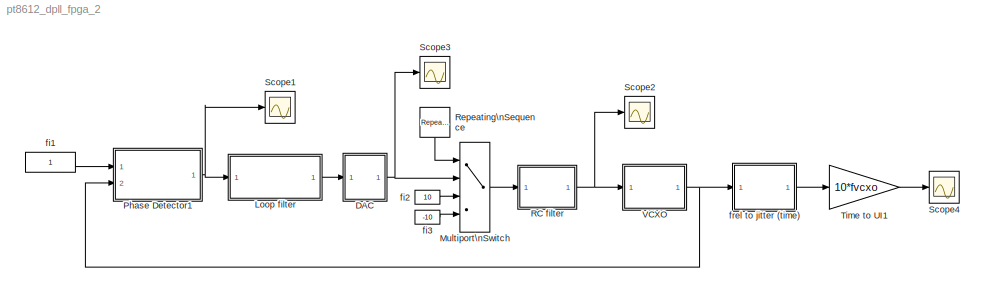
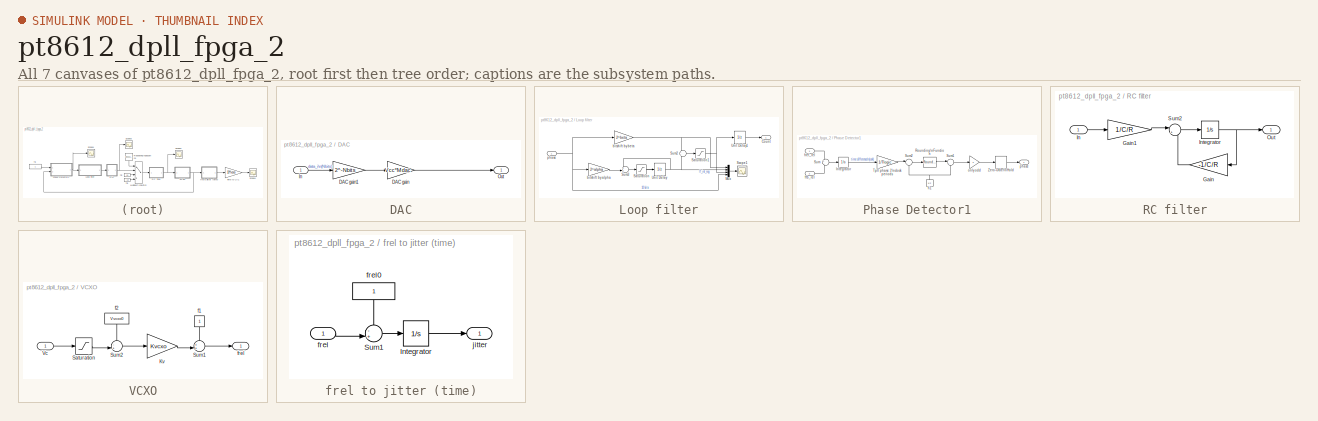
[diagram: thumbnail index - all 7 canvases of the model, root first then tree order]
MODEL pt8612_dpll_fpga_2
KIND model
CONFIG AbsTol = 1e-12
CONFIG FixedStep = auto
CONFIG MaxStep = auto
CONFIG MinStep = auto
CONFIG RelTol = 1e-9
CONFIG Solver = ode45
CONFIG SolverMode = Auto
CONFIG StartTime = 0.0
CONFIG StopTime = 5
BLOCK [SubSystem] DAC
  Ports = [1, 1]
  TreatAsAtomicUnit = off
BLOCK [Gain] DAC/DAC gain
  Gain = Vcc*Mdac
BLOCK [Gain] DAC/DAC gain1
  Gain = 2^-Nbits
BLOCK [Inport] DAC/In
BLOCK [Outport] DAC/Out
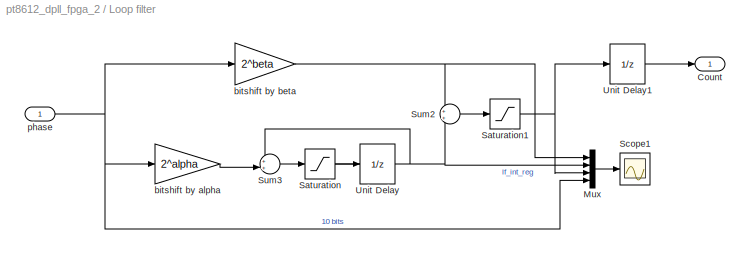
BLOCK [SubSystem] Loop filter
  Ports = [1, 1]
  TreatAsAtomicUnit = off
BLOCK [Outport] Loop filter/Count
BLOCK [Mux] Loop filter/Mux
  DisplayOption = bar
  Ports = [4, 1]
BLOCK [Saturate] Loop filter/Saturation
  LowerLimit = 0
  UpperLimit = 2^16
BLOCK [Saturate] Loop filter/Saturation1
  LowerLimit = 0
  UpperLimit = 2^16
BLOCK [Scope] Loop filter/Scope1
  DataFormat = StructureWithTime
  Decimation = 100
  NumInputPorts = 1
  Ports = [1]
  SampleTime = T
  SaveName = ScopeData5
  TimeRange = 10
  YMax = 70000
  YMin = -20000
  ZoomMode = xonly
BLOCK [Sum] Loop filter/Sum2
  IconShape = round
  InputSameDT = off
  OutDataTypeMode = Inherit via internal rule
  Ports = [2, 1]
BLOCK [Sum] Loop filter/Sum3
  IconShape = round
  InputSameDT = off
  Inputs = ++|
  OutDataTypeMode = Inherit via internal rule
  Ports = [2, 1]
BLOCK [UnitDelay] Loop filter/Unit Delay
  SampleTime = T
BLOCK [UnitDelay] Loop filter/Unit Delay1
  SampleTime = T
BLOCK [Gain] Loop filter/bitshift by alpha
  Gain = 2^alpha
BLOCK [Gain] Loop filter/bitshift by beta
  Gain = 2^beta
BLOCK [Inport] Loop filter/phase
BLOCK [MultiPortSwitch] Multiport\nSwitch
  InputSameDT = off
  Inputs = 3
  Ports = [4, 1]
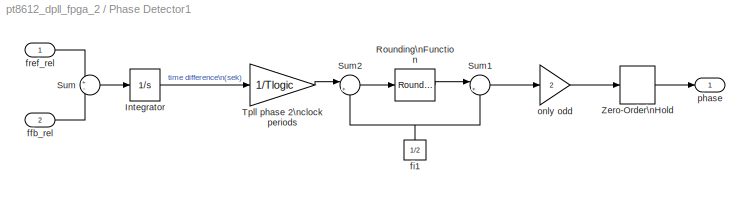
BLOCK [SubSystem] Phase Detector1
  Ports = [2, 1]
  TreatAsAtomicUnit = off
BLOCK [Integrator] Phase Detector1/Integrator
  LimitOutput = on
  LowerSaturationLimit = -time_diff_max
  Ports = [1, 1]
  UpperSaturationLimit = time_diff_max
BLOCK [Rounding] Phase Detector1/Rounding\nFunction
  Operator = round
BLOCK [Sum] Phase Detector1/Sum
  IconShape = round
  InputSameDT = off
  Inputs = +-
  OutDataTypeMode = Inherit via internal rule
  Ports = [2, 1]
BLOCK [Sum] Phase Detector1/Sum1
  IconShape = round
  InputSameDT = off
  Inputs = |++
  OutDataTypeMode = Inherit via internal rule
  Ports = [2, 1]
BLOCK [Sum] Phase Detector1/Sum2
  IconShape = round
  InputSameDT = off
  Inputs = |+-
  OutDataTypeMode = Inherit via internal rule
  Ports = [2, 1]
BLOCK [Gain] Phase Detector1/Tpll phase 2\nclock periods
  Gain = 1/Tlogic
BLOCK [ZeroOrderHold] Phase Detector1/Zero-Order\nHold
  SampleTime = T
BLOCK [Inport] Phase Detector1/ffb_rel
  Port = 2
BLOCK [Constant] Phase Detector1/fi1
  Value = 1/2
BLOCK [Inport] Phase Detector1/fref_rel
BLOCK [Gain] Phase Detector1/only odd
  Gain = 2
BLOCK [Outport] Phase Detector1/phase
BLOCK [SubSystem] RC filter
  Ports = [1, 1]
  TreatAsAtomicUnit = off
BLOCK [Gain] RC filter/Gain
  Gain = -1/C/R
BLOCK [Gain] RC filter/Gain1
  Gain = 1/C/R
BLOCK [Inport] RC filter/In
BLOCK [Integrator] RC filter/Integrator
  InitialCondition = Vvcxo0
  Ports = [1, 1]
BLOCK [Outport] RC filter/Out
BLOCK [Sum] RC filter/Sum2
  IconShape = round
  InputSameDT = off
  Inputs = |++
  OutDataTypeMode = Inherit via internal rule
  Ports = [2, 1]
BLOCK [Reference] Repeating\nSequence  REF=simulink/Sources/Repeating\nSequence
  Ports = [0, 1]
  SourceBlock = simulink/Sources/Repeating\nSequence
  SourceType = Repeating table
  rep_seq_t = [0 1 1 2 2 3 3 4]
  rep_seq_y = [1 1 2 2 1 1 3 3]
BLOCK [Scope] Scope1
  DataFormat = StructureWithTime
  NumInputPorts = 1
  Ports = [1]
  SampleInput = on
  SampleTime = T
  TimeRange = 10
  YMax = 5500
  YMin = -250
  ZoomMode = xonly
BLOCK [Scope] Scope2
  DataFormat = StructureWithTime
  LimitDataPoints = off
  NumInputPorts = 1
  Ports = [1]
  SampleInput = on
  SampleTime = T
  SaveName = ScopeData3
  TimeRange = 10
  YMax = 3.9
  YMin = 3.525
  ZoomMode = yonly
BLOCK [Scope] Scope3
  DataFormat = StructureWithTime
  LimitDataPoints = off
  NumInputPorts = 1
  Ports = [1]
  SampleInput = on
  SampleTime = T
  SaveName = ScopeData1
  TimeRange = 10
  YMax = 2.5
  YMin = 0
  ZoomMode = yonly
BLOCK [Scope] Scope4
  DataFormat = StructureWithTime
  LimitDataPoints = off
  NumInputPorts = 1
  Ports = [1]
  SampleInput = on
  SampleTime = 1e-4
  SaveName = ScopeData2
  TimeRange = 10
  YMax = -2977.5
  YMin = -3020
  ZoomMode = xonly
BLOCK [Gain] Time to UI1
  Gain = 10*fvcxo
BLOCK [SubSystem] VCXO
  Ports = [1, 1]
  TreatAsAtomicUnit = off
BLOCK [Gain] VCXO/Kv
  Gain = Kvcxo
BLOCK [Saturate] VCXO/Saturation
  LowerLimit = Vvcxomin
  UpperLimit = Vvcxomax
BLOCK [Sum] VCXO/Sum1
  IconShape = round
  InputSameDT = off
  Inputs = ++|
  OutDataTypeMode = Inherit via internal rule
  Ports = [2, 1]
BLOCK [Sum] VCXO/Sum2
  IconShape = round
  InputSameDT = off
  Inputs = -+|
  OutDataTypeMode = Inherit via internal rule
  Ports = [2, 1]
BLOCK [Inport] VCXO/Vc
BLOCK [Constant] VCXO/f1
BLOCK [Constant] VCXO/f2
  Value = Vvcxo0
BLOCK [Outport] VCXO/frel
BLOCK [Constant] fi1
BLOCK [Constant] fi2
  Value = 10
BLOCK [Constant] fi3
  Value = -10
BLOCK [SubSystem] frel to jitter (time)
  Ports = [1, 1]
  TreatAsAtomicUnit = off
BLOCK [Integrator] frel to jitter (time)/Integrator
  Ports = [1, 1]
BLOCK [Sum] frel to jitter (time)/Sum1
  IconShape = round
  InputSameDT = off
  Inputs = -+|
  OutDataTypeMode = Inherit via internal rule
  Ports = [2, 1]
BLOCK [Inport] frel to jitter (time)/frel
BLOCK [Constant] frel to jitter (time)/frel0
BLOCK [Outport] frel to jitter (time)/jitter
LINE DAC/DAC gain1:1 -> DAC/DAC gain:1
LINE DAC/DAC gain:1 -> DAC/Out:1
LINE DAC/In:1 -> DAC/DAC gain1:1
NET DAC:1 -> Multiport\nSwitch:2, Scope3:1
LINE Loop filter/Mux:1 -> Loop filter/Scope1:1
NET Loop filter/Saturation1:1 -> Loop filter/Mux:3, Loop filter/Unit Delay1:1
LINE Loop filter/Saturation:1 -> Loop filter/Unit Delay:1
LINE Loop filter/Sum2:1 -> Loop filter/Saturation1:1
LINE Loop filter/Sum3:1 -> Loop filter/Saturation:1
LINE Loop filter/Unit Delay1:1 -> Loop filter/Count:1
NET Loop filter/Unit Delay:1 -> Loop filter/Mux:2, Loop filter/Sum2:2, Loop filter/Sum3:1
LINE Loop filter/bitshift by alpha:1 -> Loop filter/Sum3:2
NET Loop filter/bitshift by beta:1 -> Loop filter/Mux:1, Loop filter/Sum2:1
NET Loop filter/phase:1 -> Loop filter/Mux:4, Loop filter/bitshift by alpha:1, Loop filter/bitshift by beta:1
LINE Loop filter:1 -> DAC:1
LINE Multiport\nSwitch:1 -> RC filter:1
LINE Phase Detector1/Integrator:1 -> Phase Detector1/Tpll phase 2\nclock periods:1
LINE Phase Detector1/Rounding\nFunction:1 -> Phase Detector1/Sum1:1
LINE Phase Detector1/Sum1:1 -> Phase Detector1/only odd:1
LINE Phase Detector1/Sum2:1 -> Phase Detector1/Rounding\nFunction:1
LINE Phase Detector1/Sum:1 -> Phase Detector1/Integrator:1
LINE Phase Detector1/Tpll phase 2\nclock periods:1 -> Phase Detector1/Sum2:1
LINE Phase Detector1/Zero-Order\nHold:1 -> Phase Detector1/phase:1
LINE Phase Detector1/ffb_rel:1 -> Phase Detector1/Sum:2
NET Phase Detector1/fi1:1 -> Phase Detector1/Sum1:2, Phase Detector1/Sum2:2
LINE Phase Detector1/fref_rel:1 -> Phase Detector1/Sum:1
LINE Phase Detector1/only odd:1 -> Phase Detector1/Zero-Order\nHold:1
NET Phase Detector1:1 -> Loop filter:1, Scope1:1
LINE RC filter/Gain1:1 -> RC filter/Sum2:1
LINE RC filter/Gain:1 -> RC filter/Sum2:2
LINE RC filter/In:1 -> RC filter/Gain1:1
NET RC filter/Integrator:1 -> RC filter/Gain:1, RC filter/Out:1
LINE RC filter/Sum2:1 -> RC filter/Integrator:1
NET RC filter:1 -> Scope2:1, VCXO:1
LINE Repeating\nSequence:1 -> Multiport\nSwitch:1
LINE Time to UI1:1 -> Scope4:1
LINE VCXO/Kv:1 -> VCXO/Sum1:2
LINE VCXO/Saturation:1 -> VCXO/Sum2:2
LINE VCXO/Sum1:1 -> VCXO/frel:1
LINE VCXO/Sum2:1 -> VCXO/Kv:1
LINE VCXO/Vc:1 -> VCXO/Saturation:1
LINE VCXO/f1:1 -> VCXO/Sum1:1
LINE VCXO/f2:1 -> VCXO/Sum2:1
NET VCXO:1 -> Phase Detector1:2, frel to jitter (time):1
LINE fi1:1 -> Phase Detector1:1
LINE fi2:1 -> Multiport\nSwitch:3
LINE fi3:1 -> Multiport\nSwitch:4
LINE frel to jitter (time)/Integrator:1 -> frel to jitter (time)/jitter:1
LINE frel to jitter (time)/Sum1:1 -> frel to jitter (time)/Integrator:1
LINE frel to jitter (time)/frel0:1 -> frel to jitter (time)/Sum1:1
LINE frel to jitter (time)/frel:1 -> frel to jitter (time)/Sum1:2
LINE frel to jitter (time):1 -> Time to UI1:1
note: NET lines group one-source signal fan-out (src -> all destinations, sorted); 1:1 wires keep LINE
